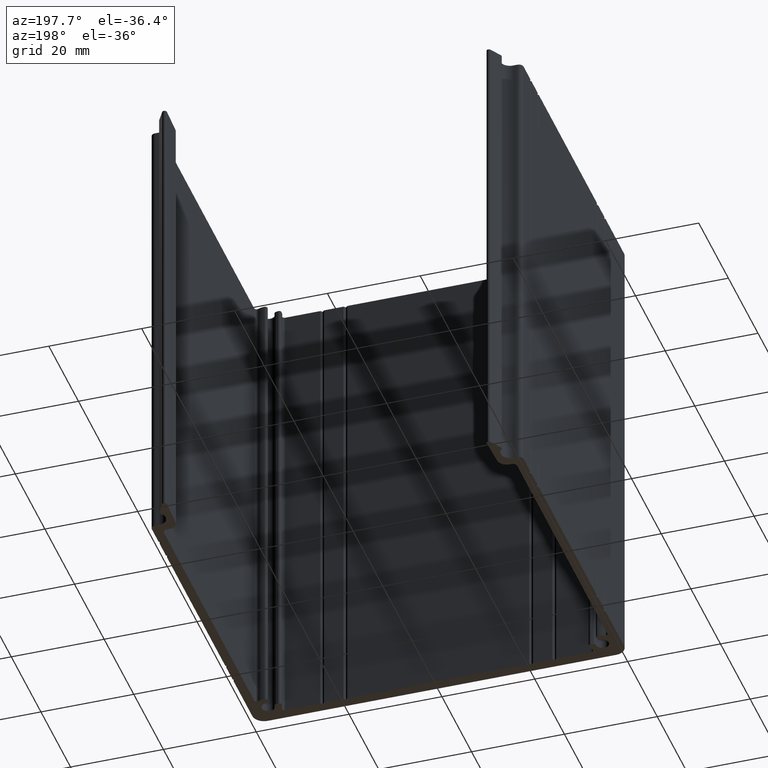
[diagram: clean part render]
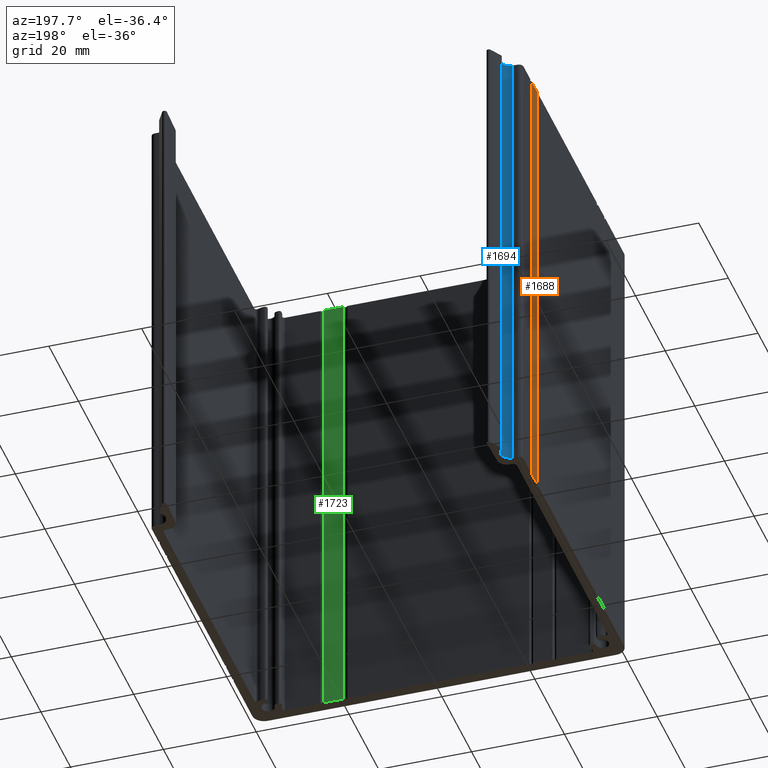
[diagram: same view with three faces highlighted in distinct colors, each labeled with its STEP entity id]
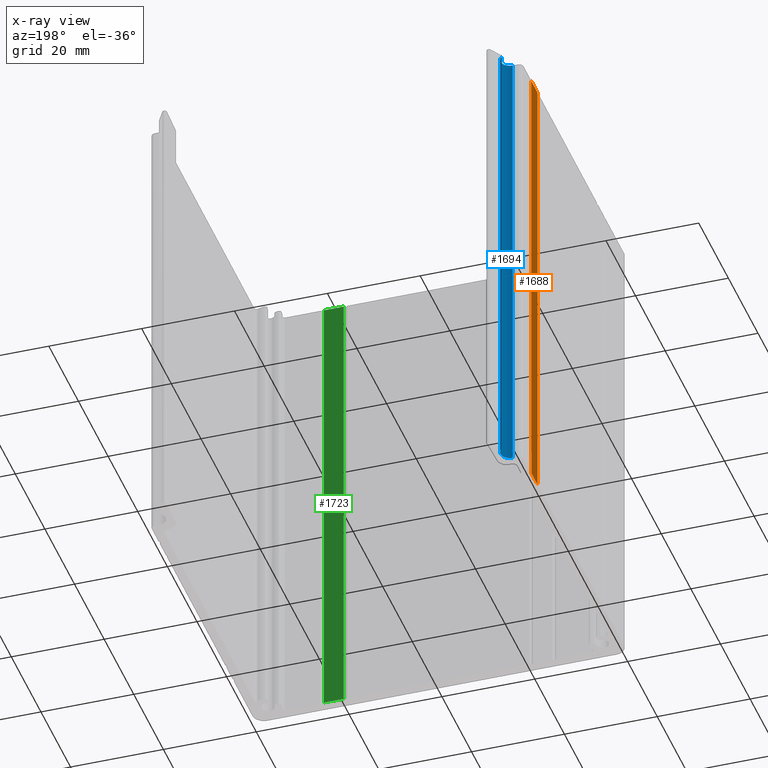
[diagram: x-ray of the same camera — body ghosted, the three highlighted faces saturated]
A machine part, auxiliary view with three faces highlighted in distinct colors.
The next image is the same camera in x-ray (body ghosted, the three faces saturated) — at least one of them is partly hidden behind the body in this view.
Their STEP definitions:

[orange] entity #1688 — the highlighted planar face has unit normal (-1, -0, 0).
#122=FACE_OUTER_BOUND('',#210,.T.);
#210=EDGE_LOOP('',(#1149,#1150,#1151,#1152));
#318=LINE('',#2509,#512);
#319=LINE('',#2512,#513);
#320=LINE('',#2514,#514);
#321=LINE('',#2515,#515);
#512=VECTOR('',#1999,10.);
#513=VECTOR('',#2002,10.);
#514=VECTOR('',#2003,10.);
#515=VECTOR('',#2004,10.);
#697=VERTEX_POINT('',#2505);
#698=VERTEX_POINT('',#2507);
#699=VERTEX_POINT('',#2511);
#700=VERTEX_POINT('',#2513);
#880=EDGE_CURVE('',#697,#698,#318,.T.);
#881=EDGE_CURVE('',#699,#697,#319,.T.);
#882=EDGE_CURVE('',#700,#698,#320,.T.);
#883=EDGE_CURVE('',#699,#700,#321,.T.);
#1149=ORIENTED_EDGE('',*,*,#881,.T.);
#1150=ORIENTED_EDGE('',*,*,#880,.T.);
#1151=ORIENTED_EDGE('',*,*,#882,.F.);
#1152=ORIENTED_EDGE('',*,*,#883,.F.);
#1631=PLANE('',#1801);
#1688=ADVANCED_FACE('',(#122),#1631,.T.);
#1801=AXIS2_PLACEMENT_3D('',#2510,#2000,#2001);
#1999=DIRECTION('',(0.,0.,1.));
#2000=DIRECTION('center_axis',(-1.,-1.69167948449269E-14,0.));
#2001=DIRECTION('ref_axis',(1.69167948449269E-14,-1.,0.));
#2002=DIRECTION('',(1.69167948449269E-14,-1.,0.));
#2003=DIRECTION('',(1.69167948449269E-14,-1.,0.));
#2004=DIRECTION('',(0.,0.,1.));
#2505=CARTESIAN_POINT('',(-40.0357959715105,60.8471462654815,0.));
#2507=CARTESIAN_POINT('',(-40.0357959715105,60.8471462654815,100.));
#2509=CARTESIAN_POINT('',(-40.0357959715105,60.8471462654815,0.));
#2510=CARTESIAN_POINT('Origin',(-40.0357959715105,65.0473670654233,0.));
#2511=CARTESIAN_POINT('',(-40.0357959715105,65.0473670654233,0.));
#2512=CARTESIAN_POINT('',(-40.0357959715105,65.0473670654233,0.));
#2513=CARTESIAN_POINT('',(-40.0357959715105,65.0473670654233,100.));
#2514=CARTESIAN_POINT('',(-40.0357959715105,65.0473670654233,100.));
#2515=CARTESIAN_POINT('',(-40.0357959715105,65.0473670654233,0.));

[blue] entity #1694 — the highlighted cylindrical surface (edge-blend (fillet) strip) has radius 2 mm, axis along (0, 0, 1).
#19=CIRCLE('',#1810,2.00000000000007);
#20=CIRCLE('',#1811,2.00000000000007);
#81=CYLINDRICAL_SURFACE('',#1809,2.00000000000007);
#128=FACE_OUTER_BOUND('',#216,.T.);
#216=EDGE_LOOP('',(#1173,#1174,#1175,#1176));
#334=LINE('',#2545,#528);
#335=LINE('',#2551,#529);
#528=VECTOR('',#2031,10.);
#529=VECTOR('',#2038,10.);
#709=VERTEX_POINT('',#2541);
#710=VERTEX_POINT('',#2543);
#711=VERTEX_POINT('',#2547);
#712=VERTEX_POINT('',#2549);
#898=EDGE_CURVE('',#709,#710,#334,.T.);
#899=EDGE_CURVE('',#711,#709,#19,.T.);
#900=EDGE_CURVE('',#712,#710,#20,.T.);
#901=EDGE_CURVE('',#711,#712,#335,.T.);
#1173=ORIENTED_EDGE('',*,*,#899,.T.);
#1174=ORIENTED_EDGE('',*,*,#898,.T.);
#1175=ORIENTED_EDGE('',*,*,#900,.F.);
#1176=ORIENTED_EDGE('',*,*,#901,.F.);
#1694=ADVANCED_FACE('',(#128),#81,.F.);
#1809=AXIS2_PLACEMENT_3D('',#2546,#2032,#2033);
#1810=AXIS2_PLACEMENT_3D('',#2548,#2034,#2035);
#1811=AXIS2_PLACEMENT_3D('',#2550,#2036,#2037);
#2031=DIRECTION('',(0.,0.,1.));
#2032=DIRECTION('center_axis',(0.,0.,1.));
#2033=DIRECTION('ref_axis',(-6.43929354282567E-13,1.,0.));
#2034=DIRECTION('center_axis',(0.,0.,-1.));
#2035=DIRECTION('ref_axis',(-6.43929354282567E-13,1.,0.));
#2036=DIRECTION('center_axis',(0.,0.,-1.));
#2037=DIRECTION('ref_axis',(-6.43929354282567E-13,1.,0.));
#2038=DIRECTION('',(0.,0.,1.));
#2541=CARTESIAN_POINT('',(-38.0357959715111,71.3633019644717,0.));
#2543=CARTESIAN_POINT('',(-38.0357959715111,71.3633019644717,100.));
#2545=CARTESIAN_POINT('',(-38.0357959715111,71.3633019644717,0.));
#2546=CARTESIAN_POINT('Origin',(-38.0357959715124,73.3633019644718,0.));
#2547=CARTESIAN_POINT('',(-36.7095899128855,74.8603582393197,0.));
#2548=CARTESIAN_POINT('Origin',(-38.0357959715124,73.3633019644718,0.));
#2549=CARTESIAN_POINT('',(-36.7095899128855,74.8603582393197,100.));
#2550=CARTESIAN_POINT('Origin',(-38.0357959715124,73.3633019644718,100.));
#2551=CARTESIAN_POINT('',(-36.7095899128855,74.8603582393197,0.));

[green] entity #1723 — the highlighted planar face has unit normal (-0, 1, 0).
#157=FACE_OUTER_BOUND('',#245,.T.);
#245=EDGE_LOOP('',(#1289,#1290,#1291,#1292));
#393=LINE('',#2719,#587);
#394=LINE('',#2722,#588);
#395=LINE('',#2724,#589);
#396=LINE('',#2725,#590);
#587=VECTOR('',#2204,10.);
#588=VECTOR('',#2207,10.);
#589=VECTOR('',#2208,10.);
#590=VECTOR('',#2209,10.);
#767=VERTEX_POINT('',#2715);
#768=VERTEX_POINT('',#2717);
#769=VERTEX_POINT('',#2721);
#770=VERTEX_POINT('',#2723);
#985=EDGE_CURVE('',#767,#768,#393,.T.);
#986=EDGE_CURVE('',#769,#767,#394,.T.);
#987=EDGE_CURVE('',#770,#768,#395,.T.);
#988=EDGE_CURVE('',#769,#770,#396,.T.);
#1289=ORIENTED_EDGE('',*,*,#986,.T.);
#1290=ORIENTED_EDGE('',*,*,#985,.T.);
#1291=ORIENTED_EDGE('',*,*,#987,.F.);
#1292=ORIENTED_EDGE('',*,*,#988,.F.);
#1651=PLANE('',#1866);
#1723=ADVANCED_FACE('',(#157),#1651,.T.);
#1866=AXIS2_PLACEMENT_3D('',#2720,#2205,#2206);
#2204=DIRECTION('',(0.,0.,1.));
#2205=DIRECTION('center_axis',(-2.749123680029E-14,1.,0.));
#2206=DIRECTION('ref_axis',(-1.,-2.749123680029E-14,0.));
#2207=DIRECTION('',(-1.,-2.749123680029E-14,0.));
#2208=DIRECTION('',(-1.,-2.749123680029E-14,0.));
#2209=DIRECTION('',(0.,0.,1.));
#2715=CARTESIAN_POINT('',(20.3999316149671,2.49999999999036,0.));
#2717=CARTESIAN_POINT('',(20.3999316149671,2.49999999999036,100.));
#2719=CARTESIAN_POINT('',(20.3999316149671,2.49999999999036,0.));
#2720=CARTESIAN_POINT('Origin',(24.5999316149597,2.49999999999048,0.));
#2721=CARTESIAN_POINT('',(24.5999316149597,2.49999999999048,0.));
#2722=CARTESIAN_POINT('',(24.5999316149597,2.49999999999048,0.));
#2723=CARTESIAN_POINT('',(24.5999316149597,2.49999999999048,100.));
#2724=CARTESIAN_POINT('',(24.5999316149597,2.49999999999048,100.));
#2725=CARTESIAN_POINT('',(24.5999316149597,2.49999999999048,0.));